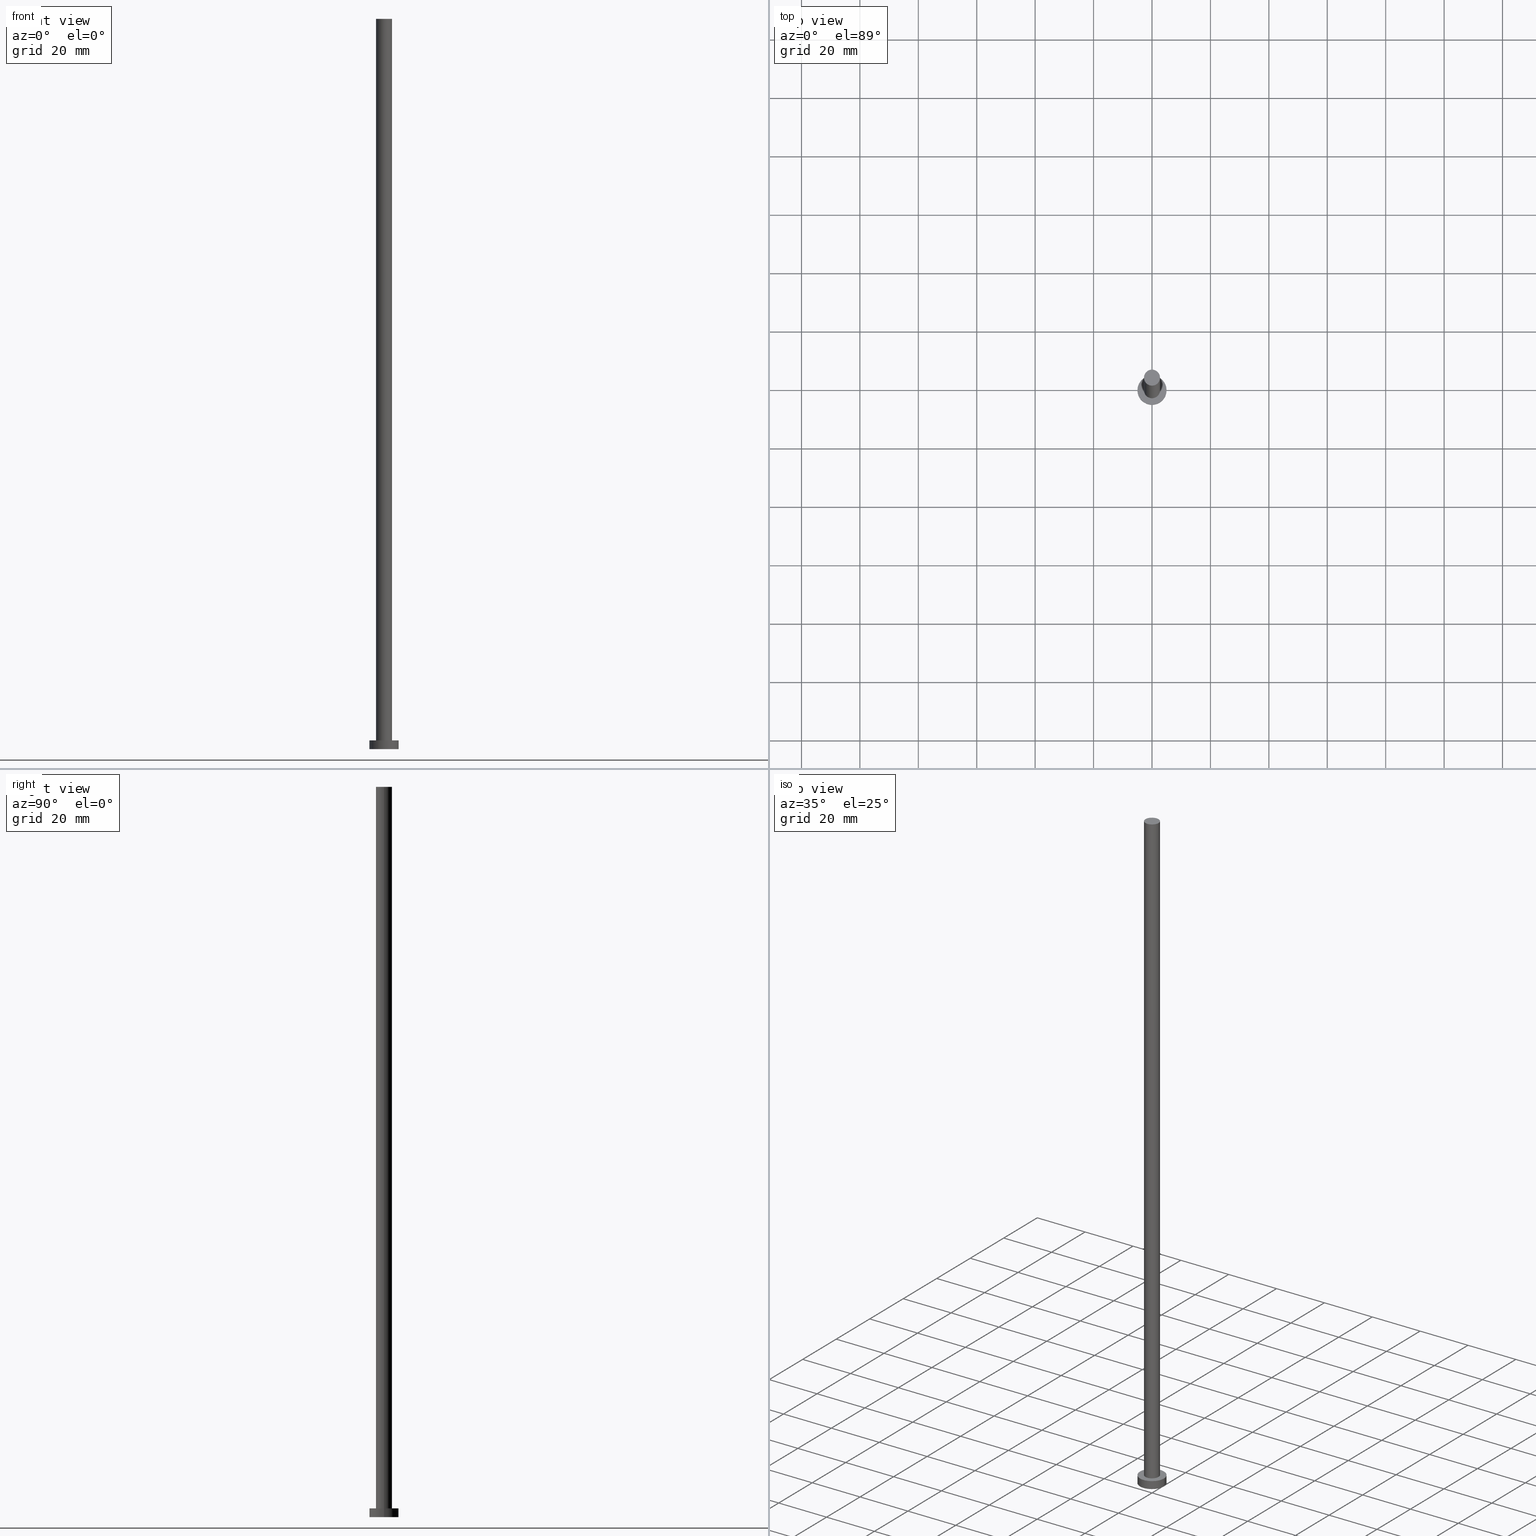
[diagram: canonical four-view strip — front | top / right | iso, engineering-drawing reading convention]
A machine part, canonical four-view strip (front | top / right | iso — engineering-drawing reading convention). The complete STEP part file that produces these views, byte-faithful:
ISO-10303-21;
HEADER;
FILE_DESCRIPTION (( 'STEP AP203' ),
    '1' );
FILE_NAME ('c1ba.STEP',
    '2023-02-13T12:39:35',
    ( '' ),
    ( '' ),
    'SwSTEP 2.0',
    'SolidWorks 2019',
    '' );
FILE_SCHEMA (( 'CONFIG_CONTROL_DESIGN' ));
ENDSEC;

DATA;
#1 = CARTESIAN_POINT ( 'NONE',  ( -5.000000000000000000, 0.000000000000000000, 0.000000000000000000 ) ) ;
#2 = ADVANCED_BREP_SHAPE_REPRESENTATION ( 'c1ba', ( #109, #31 ), #197 ) ;
#3 = DIRECTION ( 'NONE',  ( -0.000000000000000000, -0.000000000000000000, -1.000000000000000000 ) ) ;
#4 = CARTESIAN_POINT ( 'NONE',  ( 0.000000000000000000, 0.000000000000000000, 250.0000000000000000 ) ) ;
#5 = APPROVAL_PERSON_ORGANIZATION ( #128, #252, #250 ) ;
#6 = AXIS2_PLACEMENT_3D ( 'NONE', #67, #105, #214 ) ;
#7 = EDGE_LOOP ( 'NONE', ( #91, #163 ) ) ;
#8 = ORIENTED_EDGE ( 'NONE', *, *, #199, .T. ) ;
#9 = EDGE_LOOP ( 'NONE', ( #27, #164, #111, #183 ) ) ;
#10 = ORIENTED_EDGE ( 'NONE', *, *, #106, .F. ) ;
#11 = CARTESIAN_POINT ( 'NONE',  ( 2.750000000000000000, 3.367778697655221012E-16, 3.000000000000000000 ) ) ;
#12 = CALENDAR_DATE ( 2023, 13, 2 ) ;
#13 = AXIS2_PLACEMENT_3D ( 'NONE', #246, #145, #184 ) ;
#14 = PRODUCT_DEFINITION_FORMATION_WITH_SPECIFIED_SOURCE ( 'LIBOVOLN�', '', #242, .NOT_KNOWN. ) ;
#15 = DIRECTION ( 'NONE',  ( 0.000000000000000000, 0.000000000000000000, 1.000000000000000000 ) ) ;
#16 = CIRCLE ( 'NONE', #56, 2.750000000000000000 ) ;
#17 = FACE_BOUND ( 'NONE', #7, .T. ) ;
#18 = PRODUCT_DEFINITION ( 'NEZN�M�', '', #14, #60 ) ;
#19 = DIRECTION ( 'NONE',  ( -0.000000000000000000, -0.000000000000000000, -1.000000000000000000 ) ) ;
#20 = CARTESIAN_POINT ( 'NONE',  ( -2.750000000000000000, 0.000000000000000000, 250.0000000000000000 ) ) ;
#21 = DIRECTION ( 'NONE',  ( 1.000000000000000000, 0.000000000000000000, -0.000000000000000000 ) ) ;
#22 = PRODUCT_RELATED_PRODUCT_CATEGORY ( 'detail', '', ( #242 ) ) ;
#23 = ORIENTED_EDGE ( 'NONE', *, *, #130, .T. ) ;
#24 = DIRECTION ( 'NONE',  ( -0.000000000000000000, -0.000000000000000000, -1.000000000000000000 ) ) ;
#25 = APPLICATION_PROTOCOL_DEFINITION ( 'international standard', 'config_control_design', 1994, #195 ) ;
#26 = CIRCLE ( 'NONE', #225, 5.000000000000000000 ) ;
#27 = ORIENTED_EDGE ( 'NONE', *, *, #248, .F. ) ;
#28 = EDGE_LOOP ( 'NONE', ( #194, #44, #69, #158 ) ) ;
#29 = COORDINATED_UNIVERSAL_TIME_OFFSET ( 1, 0, .AHEAD. ) ;
#30 = CARTESIAN_POINT ( 'NONE',  ( 0.000000000000000000, 0.000000000000000000, 3.000000000000000000 ) ) ;
#31 = AXIS2_PLACEMENT_3D ( 'NONE', #198, #162, #65 ) ;
#32 = DIRECTION ( 'NONE',  ( 0.000000000000000000, 0.000000000000000000, 1.000000000000000000 ) ) ;
#33 = PERSON_AND_ORGANIZATION_ROLE ( 'design_supplier' ) ;
#34 = EDGE_CURVE ( 'NONE', #196, #72, #240, .T. ) ;
#35 = PERSON_AND_ORGANIZATION ( #210, #193 ) ;
#36 = AXIS2_PLACEMENT_3D ( 'NONE', #30, #98, #251 ) ;
#37 = DIRECTION ( 'NONE',  ( 1.000000000000000000, 0.000000000000000000, -0.000000000000000000 ) ) ;
#38 = DIRECTION ( 'NONE',  ( -0.000000000000000000, -0.000000000000000000, -1.000000000000000000 ) ) ;
#39 = ADVANCED_FACE ( 'NONE', ( #178 ), #47, .T. ) ;
#40 = LINE ( 'NONE', #118, #176 ) ;
#41 = CC_DESIGN_DATE_AND_TIME_ASSIGNMENT ( #167, #148, ( #18 ) ) ;
#42 = DIRECTION ( 'NONE',  ( 1.000000000000000000, 0.000000000000000000, -0.000000000000000000 ) ) ;
#43 = VERTEX_POINT ( 'NONE', #64 ) ;
#44 = ORIENTED_EDGE ( 'NONE', *, *, #34, .F. ) ;
#45 = APPLICATION_PROTOCOL_DEFINITION ( 'international standard', 'config_control_design', 1994, #94 ) ;
#46 = VECTOR ( 'NONE', #58, 1000.000000000000000 ) ;
#47 = CYLINDRICAL_SURFACE ( 'NONE', #97, 2.750000000000000000 ) ;
#48 = EDGE_LOOP ( 'NONE', ( #123, #200, #8, #238 ) ) ;
#49 = APPROVAL_ROLE ( '' ) ;
#50 = DATE_TIME_ROLE ( 'classification_date' ) ;
#51 = LOCAL_TIME ( 13, 39, 35.00000000000000000, #73 ) ;
#52 = CIRCLE ( 'NONE', #229, 5.000000000000000000 ) ;
#53 = SECURITY_CLASSIFICATION_LEVEL ( 'unclassified' ) ;
#54 = APPROVAL_DATE_TIME ( #223, #252 ) ;
#55 = CIRCLE ( 'NONE', #117, 5.000000000000000000 ) ;
#56 = AXIS2_PLACEMENT_3D ( 'NONE', #191, #115, #102 ) ;
#57 = CYLINDRICAL_SURFACE ( 'NONE', #206, 2.750000000000000000 ) ;
#58 = DIRECTION ( 'NONE',  ( -0.000000000000000000, -0.000000000000000000, -1.000000000000000000 ) ) ;
#59 = CC_DESIGN_PERSON_AND_ORGANIZATION_ASSIGNMENT ( #86, #213, ( #242 ) ) ;
#60 = DESIGN_CONTEXT ( 'detailed design', #94, 'design' ) ;
#61 = FACE_OUTER_BOUND ( 'NONE', #161, .T. ) ;
#62 = LINE ( 'NONE', #121, #46 ) ;
#63 = CC_DESIGN_APPROVAL ( #110, ( #18 ) ) ;
#64 = CARTESIAN_POINT ( 'NONE',  ( 2.750000000000000000, 3.367778697655221012E-16, 250.0000000000000000 ) ) ;
#65 = DIRECTION ( 'NONE',  ( 1.000000000000000000, 0.000000000000000000, 0.000000000000000000 ) ) ;
#66 = EDGE_CURVE ( 'NONE', #160, #139, #52, .T. ) ;
#67 = CARTESIAN_POINT ( 'NONE',  ( 0.000000000000000000, 0.000000000000000000, 3.000000000000000000 ) ) ;
#68 = PERSON_AND_ORGANIZATION ( #210, #193 ) ;
#69 = ORIENTED_EDGE ( 'NONE', *, *, #189, .T. ) ;
#70 = ADVANCED_FACE ( 'NONE', ( #99 ), #171, .T. ) ;
#71 = COORDINATED_UNIVERSAL_TIME_OFFSET ( 1, 0, .AHEAD. ) ;
#72 = VERTEX_POINT ( 'NONE', #112 ) ;
#73 = COORDINATED_UNIVERSAL_TIME_OFFSET ( 1, 0, .AHEAD. ) ;
#74 = CALENDAR_DATE ( 2023, 13, 2 ) ;
#75 = CALENDAR_DATE ( 2023, 13, 2 ) ;
#76 = CARTESIAN_POINT ( 'NONE',  ( 0.000000000000000000, 0.000000000000000000, 250.0000000000000000 ) ) ;
#77 = UNCERTAINTY_MEASURE_WITH_UNIT (LENGTH_MEASURE( 1.000000000000000082E-05 ), #120, 'distance_accuracy_value', 'NONE');
#78 = CARTESIAN_POINT ( 'NONE',  ( -5.000000000000000000, 0.000000000000000000, 3.000000000000000000 ) ) ;
#79 = DIRECTION ( 'NONE',  ( 0.000000000000000000, 0.000000000000000000, 1.000000000000000000 ) ) ;
#80 = CARTESIAN_POINT ( 'NONE',  ( 0.000000000000000000, 0.000000000000000000, 3.000000000000000000 ) ) ;
#81 = LOCAL_TIME ( 13, 39, 35.00000000000000000, #29 ) ;
#82 = FACE_OUTER_BOUND ( 'NONE', #244, .T. ) ;
#83 = DIRECTION ( 'NONE',  ( -1.000000000000000000, 0.000000000000000000, 0.000000000000000000 ) ) ;
#84 = EDGE_CURVE ( 'NONE', #43, #142, #175, .T. ) ;
#85 = ORIENTED_EDGE ( 'NONE', *, *, #84, .T. ) ;
#86 = PERSON_AND_ORGANIZATION ( #210, #193 ) ;
#87 = ORIENTED_EDGE ( 'NONE', *, *, #180, .T. ) ;
#88 = VECTOR ( 'NONE', #3, 1000.000000000000000 ) ;
#89 = COORDINATED_UNIVERSAL_TIME_OFFSET ( 1, 0, .AHEAD. ) ;
#90 = LOCAL_TIME ( 13, 39, 35.00000000000000000, #71 ) ;
#91 = ORIENTED_EDGE ( 'NONE', *, *, #130, .F. ) ;
#92 = APPROVAL_DATE_TIME ( #247, #110 ) ;
#93 = CARTESIAN_POINT ( 'NONE',  ( -2.750000000000000000, 0.000000000000000000, 3.000000000000000000 ) ) ;
#94 = APPLICATION_CONTEXT ( 'configuration controlled 3d designs of mechanical parts and assemblies' ) ;
#95 = APPROVAL_STATUS ( 'not_yet_approved' ) ;
#96 = CC_DESIGN_PERSON_AND_ORGANIZATION_ASSIGNMENT ( #35, #166, ( #14 ) ) ;
#97 = AXIS2_PLACEMENT_3D ( 'NONE', #4, #24, #83 ) ;
#98 = DIRECTION ( 'NONE',  ( -0.000000000000000000, -0.000000000000000000, -1.000000000000000000 ) ) ;
#99 = FACE_OUTER_BOUND ( 'NONE', #28, .T. ) ;
#100 = CYLINDRICAL_SURFACE ( 'NONE', #107, 5.000000000000000000 ) ;
#101 = AXIS2_PLACEMENT_3D ( 'NONE', #255, #79, #228 ) ;
#102 = DIRECTION ( 'NONE',  ( 1.000000000000000000, 0.000000000000000000, 0.000000000000000000 ) ) ;
#103 = FACE_OUTER_BOUND ( 'NONE', #126, .T. ) ;
#104 = PLANE ( 'NONE',  #211 ) ;
#105 = DIRECTION ( 'NONE',  ( 0.000000000000000000, 0.000000000000000000, 1.000000000000000000 ) ) ;
#106 = EDGE_CURVE ( 'NONE', #139, #160, #55, .T. ) ;
#107 = AXIS2_PLACEMENT_3D ( 'NONE', #227, #172, #232 ) ;
#108 = AXIS2_PLACEMENT_3D ( 'NONE', #188, #136, #21 ) ;
#109 = MANIFOLD_SOLID_BREP ( 'P�idat vysunut�m3', #141 ) ;
#110 = APPROVAL ( #202, 'NEUR�EN�' ) ;
#111 = ORIENTED_EDGE ( 'NONE', *, *, #106, .T. ) ;
#112 = CARTESIAN_POINT ( 'NONE',  ( 5.000000000000000000, 6.123233995736766282E-16, 3.000000000000000000 ) ) ;
#113 = PERSON_AND_ORGANIZATION ( #210, #193 ) ;
#114 = APPROVAL_PERSON_ORGANIZATION ( #68, #110, #49 ) ;
#115 = DIRECTION ( 'NONE',  ( 0.000000000000000000, 0.000000000000000000, 1.000000000000000000 ) ) ;
#116 = LOCAL_TIME ( 13, 39, 35.00000000000000000, #168 ) ;
#117 = AXIS2_PLACEMENT_3D ( 'NONE', #253, #153, #169 ) ;
#118 = CARTESIAN_POINT ( 'NONE',  ( 5.000000000000000000, 6.123233995736766282E-16, 3.000000000000000000 ) ) ;
#119 = ADVANCED_FACE ( 'NONE', ( #152 ), #224, .F. ) ;
#120 =( LENGTH_UNIT ( ) NAMED_UNIT ( * ) SI_UNIT ( .MILLI., .METRE. ) );
#121 = CARTESIAN_POINT ( 'NONE',  ( -2.750000000000000000, 0.000000000000000000, 250.0000000000000000 ) ) ;
#122 = VERTEX_POINT ( 'NONE', #11 ) ;
#123 = ORIENTED_EDGE ( 'NONE', *, *, #84, .F. ) ;
#124 = LOCAL_TIME ( 13, 39, 35.00000000000000000, #89 ) ;
#125 = VERTEX_POINT ( 'NONE', #93 ) ;
#126 = EDGE_LOOP ( 'NONE', ( #236, #179 ) ) ;
#127 = PERSON_AND_ORGANIZATION ( #210, #193 ) ;
#128 = PERSON_AND_ORGANIZATION ( #210, #193 ) ;
#129 = APPROVAL_PERSON_ORGANIZATION ( #127, #216, #243 ) ;
#130 = EDGE_CURVE ( 'NONE', #125, #122, #192, .T. ) ;
#131 = PERSON_AND_ORGANIZATION ( #210, #193 ) ;
#132 = SHAPE_DEFINITION_REPRESENTATION ( #151, #2 ) ;
#133 = APPROVAL_DATE_TIME ( #204, #216 ) ;
#134 = CARTESIAN_POINT ( 'NONE',  ( 0.000000000000000000, 0.000000000000000000, 0.000000000000000000 ) ) ;
#135 = PLANE ( 'NONE',  #108 ) ;
#136 = DIRECTION ( 'NONE',  ( 0.000000000000000000, 0.000000000000000000, 1.000000000000000000 ) ) ;
#137 = CC_DESIGN_PERSON_AND_ORGANIZATION_ASSIGNMENT ( #113, #143, ( #146 ) ) ;
#138 = CARTESIAN_POINT ( 'NONE',  ( 0.000000000000000000, 0.000000000000000000, 250.0000000000000000 ) ) ;
#139 = VERTEX_POINT ( 'NONE', #207 ) ;
#140 = ORIENTED_EDGE ( 'NONE', *, *, #231, .F. ) ;
#141 = CLOSED_SHELL ( 'NONE', ( #39, #173, #70, #150, #119, #144, #165 ) ) ;
#142 = VERTEX_POINT ( 'NONE', #20 ) ;
#143 = PERSON_AND_ORGANIZATION_ROLE ( 'classification_officer' ) ;
#144 = ADVANCED_FACE ( 'NONE', ( #61 ), #57, .T. ) ;
#145 = DIRECTION ( 'NONE',  ( 0.000000000000000000, 0.000000000000000000, 1.000000000000000000 ) ) ;
#146 = SECURITY_CLASSIFICATION ( '', '', #53 ) ;
#147 = AXIS2_PLACEMENT_3D ( 'NONE', #134, #205, #37 ) ;
#148 = DATE_TIME_ROLE ( 'creation_date' ) ;
#149 = APPROVAL_STATUS ( 'not_yet_approved' ) ;
#150 = ADVANCED_FACE ( 'NONE', ( #17, #103 ), #135, .T. ) ;
#151 = PRODUCT_DEFINITION_SHAPE ( 'NONE', 'NONE',  #18 ) ;
#152 = FACE_OUTER_BOUND ( 'NONE', #218, .T. ) ;
#153 = DIRECTION ( 'NONE',  ( 0.000000000000000000, 0.000000000000000000, 1.000000000000000000 ) ) ;
#154 = LINE ( 'NONE', #209, #88 ) ;
#155 = DIRECTION ( 'NONE',  ( 0.000000000000000000, 0.000000000000000000, 1.000000000000000000 ) ) ;
#156 = DIRECTION ( 'NONE',  ( -1.000000000000000000, 0.000000000000000000, 0.000000000000000000 ) ) ;
#157 = EDGE_CURVE ( 'NONE', #43, #122, #154, .T. ) ;
#158 = ORIENTED_EDGE ( 'NONE', *, *, #66, .T. ) ;
#159 = CC_DESIGN_APPROVAL ( #216, ( #14 ) ) ;
#160 = VERTEX_POINT ( 'NONE', #1 ) ;
#161 = EDGE_LOOP ( 'NONE', ( #237, #140, #87, #23 ) ) ;
#162 = DIRECTION ( 'NONE',  ( 0.000000000000000000, 0.000000000000000000, 1.000000000000000000 ) ) ;
#163 = ORIENTED_EDGE ( 'NONE', *, *, #199, .F. ) ;
#164 = ORIENTED_EDGE ( 'NONE', *, *, #234, .T. ) ;
#165 = ADVANCED_FACE ( 'NONE', ( #82 ), #104, .T. ) ;
#166 = PERSON_AND_ORGANIZATION_ROLE ( 'creator' ) ;
#167 = DATE_AND_TIME ( #245, #116 ) ;
#168 = COORDINATED_UNIVERSAL_TIME_OFFSET ( 1, 0, .AHEAD. ) ;
#169 = DIRECTION ( 'NONE',  ( 1.000000000000000000, 0.000000000000000000, 0.000000000000000000 ) ) ;
#170 = CC_DESIGN_PERSON_AND_ORGANIZATION_ASSIGNMENT ( #221, #203, ( #18 ) ) ;
#171 = CYLINDRICAL_SURFACE ( 'NONE', #36, 5.000000000000000000 ) ;
#172 = DIRECTION ( 'NONE',  ( -0.000000000000000000, -0.000000000000000000, -1.000000000000000000 ) ) ;
#173 = ADVANCED_FACE ( 'NONE', ( #208 ), #100, .T. ) ;
#174 = DIRECTION ( 'NONE',  ( -0.000000000000000000, -0.000000000000000000, -1.000000000000000000 ) ) ;
#175 = CIRCLE ( 'NONE', #220, 2.750000000000000000 ) ;
#176 = VECTOR ( 'NONE', #19, 1000.000000000000000 ) ;
#177 = CC_DESIGN_DATE_AND_TIME_ASSIGNMENT ( #185, #50, ( #146 ) ) ;
#178 = FACE_OUTER_BOUND ( 'NONE', #48, .T. ) ;
#179 = ORIENTED_EDGE ( 'NONE', *, *, #248, .T. ) ;
#180 = EDGE_CURVE ( 'NONE', #142, #125, #62, .T. ) ;
#181 = MECHANICAL_CONTEXT ( 'NONE', #195, 'mechanical' ) ;
#182 =( NAMED_UNIT ( * ) PLANE_ANGLE_UNIT ( ) SI_UNIT ( $, .RADIAN. ) );
#183 = ORIENTED_EDGE ( 'NONE', *, *, #189, .F. ) ;
#184 = DIRECTION ( 'NONE',  ( 1.000000000000000000, 0.000000000000000000, 0.000000000000000000 ) ) ;
#185 = DATE_AND_TIME ( #219, #51 ) ;
#186 = DIRECTION ( 'NONE',  ( 0.000000000000000000, 0.000000000000000000, 1.000000000000000000 ) ) ;
#187 = DIRECTION ( 'NONE',  ( 1.000000000000000000, 0.000000000000000000, 0.000000000000000000 ) ) ;
#188 = CARTESIAN_POINT ( 'NONE',  ( 0.000000000000000000, 0.000000000000000000, 3.000000000000000000 ) ) ;
#189 = EDGE_CURVE ( 'NONE', #196, #160, #254, .T. ) ;
#190 = CARTESIAN_POINT ( 'NONE',  ( 0.000000000000000000, 0.000000000000000000, 250.0000000000000000 ) ) ;
#191 = CARTESIAN_POINT ( 'NONE',  ( 0.000000000000000000, 0.000000000000000000, 3.000000000000000000 ) ) ;
#192 = CIRCLE ( 'NONE', #13, 2.750000000000000000 ) ;
#193 = ORGANIZATION ( 'NEUR�EN�', 'NEUR�EN�', '' ) ;
#194 = ORIENTED_EDGE ( 'NONE', *, *, #234, .F. ) ;
#195 = APPLICATION_CONTEXT ( 'configuration controlled 3d designs of mechanical parts and assemblies' ) ;
#196 = VERTEX_POINT ( 'NONE', #226 ) ;
#197 =( GEOMETRIC_REPRESENTATION_CONTEXT ( 3 ) GLOBAL_UNCERTAINTY_ASSIGNED_CONTEXT ( ( #77 ) ) GLOBAL_UNIT_ASSIGNED_CONTEXT ( ( #120, #182, #233 ) ) REPRESENTATION_CONTEXT ( 'NONE', 'WORKASPACE' ) );
#198 = CARTESIAN_POINT ( 'NONE',  ( 0.000000000000000000, 0.000000000000000000, 0.000000000000000000 ) ) ;
#199 = EDGE_CURVE ( 'NONE', #122, #125, #16, .T. ) ;
#200 = ORIENTED_EDGE ( 'NONE', *, *, #157, .T. ) ;
#201 = DIRECTION ( 'NONE',  ( 1.000000000000000000, 0.000000000000000000, 0.000000000000000000 ) ) ;
#202 = APPROVAL_STATUS ( 'not_yet_approved' ) ;
#203 = PERSON_AND_ORGANIZATION_ROLE ( 'creator' ) ;
#204 = DATE_AND_TIME ( #74, #90 ) ;
#205 = DIRECTION ( 'NONE',  ( 0.000000000000000000, 0.000000000000000000, 1.000000000000000000 ) ) ;
#206 = AXIS2_PLACEMENT_3D ( 'NONE', #190, #174, #156 ) ;
#207 = CARTESIAN_POINT ( 'NONE',  ( 5.000000000000000000, 6.123233995736766282E-16, 0.000000000000000000 ) ) ;
#208 = FACE_OUTER_BOUND ( 'NONE', #9, .T. ) ;
#209 = CARTESIAN_POINT ( 'NONE',  ( 2.750000000000000000, 3.367778697655221012E-16, 250.0000000000000000 ) ) ;
#210 = PERSON ( 'NEUR�EN�', 'NEUR�EN�', 'NEUR�EN�', ('NEUR�EN�'), ('NEUR�EN�'), ('NEUR�EN�') ) ;
#211 = AXIS2_PLACEMENT_3D ( 'NONE', #138, #15, #42 ) ;
#212 = CARTESIAN_POINT ( 'NONE',  ( 0.000000000000000000, 0.000000000000000000, 0.000000000000000000 ) ) ;
#213 = PERSON_AND_ORGANIZATION_ROLE ( 'design_owner' ) ;
#214 = DIRECTION ( 'NONE',  ( 1.000000000000000000, 0.000000000000000000, 0.000000000000000000 ) ) ;
#215 = CC_DESIGN_SECURITY_CLASSIFICATION ( #146, ( #14 ) ) ;
#216 = APPROVAL ( #149, 'NEUR�EN�' ) ;
#217 = ORIENTED_EDGE ( 'NONE', *, *, #66, .F. ) ;
#218 = EDGE_LOOP ( 'NONE', ( #217, #10 ) ) ;
#219 = CALENDAR_DATE ( 2023, 13, 2 ) ;
#220 = AXIS2_PLACEMENT_3D ( 'NONE', #76, #186, #187 ) ;
#221 = PERSON_AND_ORGANIZATION ( #210, #193 ) ;
#222 = CC_DESIGN_PERSON_AND_ORGANIZATION_ASSIGNMENT ( #131, #33, ( #14 ) ) ;
#223 = DATE_AND_TIME ( #75, #81 ) ;
#224 = PLANE ( 'NONE',  #147 ) ;
#225 = AXIS2_PLACEMENT_3D ( 'NONE', #80, #155, #230 ) ;
#226 = CARTESIAN_POINT ( 'NONE',  ( -5.000000000000000000, 0.000000000000000000, 3.000000000000000000 ) ) ;
#227 = CARTESIAN_POINT ( 'NONE',  ( 0.000000000000000000, 0.000000000000000000, 3.000000000000000000 ) ) ;
#228 = DIRECTION ( 'NONE',  ( 1.000000000000000000, 0.000000000000000000, 0.000000000000000000 ) ) ;
#229 = AXIS2_PLACEMENT_3D ( 'NONE', #212, #32, #201 ) ;
#230 = DIRECTION ( 'NONE',  ( 1.000000000000000000, 0.000000000000000000, 0.000000000000000000 ) ) ;
#231 = EDGE_CURVE ( 'NONE', #142, #43, #249, .T. ) ;
#232 = DIRECTION ( 'NONE',  ( -1.000000000000000000, 0.000000000000000000, 0.000000000000000000 ) ) ;
#233 =( NAMED_UNIT ( * ) SI_UNIT ( $, .STERADIAN. ) SOLID_ANGLE_UNIT ( ) );
#234 = EDGE_CURVE ( 'NONE', #72, #139, #40, .T. ) ;
#235 = VECTOR ( 'NONE', #38, 1000.000000000000000 ) ;
#236 = ORIENTED_EDGE ( 'NONE', *, *, #34, .T. ) ;
#237 = ORIENTED_EDGE ( 'NONE', *, *, #157, .F. ) ;
#238 = ORIENTED_EDGE ( 'NONE', *, *, #180, .F. ) ;
#239 = ORIENTED_EDGE ( 'NONE', *, *, #231, .T. ) ;
#240 = CIRCLE ( 'NONE', #6, 5.000000000000000000 ) ;
#241 = CC_DESIGN_APPROVAL ( #252, ( #146 ) ) ;
#242 = PRODUCT ( 'c1ba', 'c1ba', '', ( #181 ) ) ;
#243 = APPROVAL_ROLE ( '' ) ;
#244 = EDGE_LOOP ( 'NONE', ( #239, #85 ) ) ;
#245 = CALENDAR_DATE ( 2023, 13, 2 ) ;
#246 = CARTESIAN_POINT ( 'NONE',  ( 0.000000000000000000, 0.000000000000000000, 3.000000000000000000 ) ) ;
#247 = DATE_AND_TIME ( #12, #124 ) ;
#248 = EDGE_CURVE ( 'NONE', #72, #196, #26, .T. ) ;
#249 = CIRCLE ( 'NONE', #101, 2.750000000000000000 ) ;
#250 = APPROVAL_ROLE ( '' ) ;
#251 = DIRECTION ( 'NONE',  ( -1.000000000000000000, 0.000000000000000000, 0.000000000000000000 ) ) ;
#252 = APPROVAL ( #95, 'NEUR�EN�' ) ;
#253 = CARTESIAN_POINT ( 'NONE',  ( 0.000000000000000000, 0.000000000000000000, 0.000000000000000000 ) ) ;
#254 = LINE ( 'NONE', #78, #235 ) ;
#255 = CARTESIAN_POINT ( 'NONE',  ( 0.000000000000000000, 0.000000000000000000, 250.0000000000000000 ) ) ;
ENDSEC;
END-ISO-10303-21;
